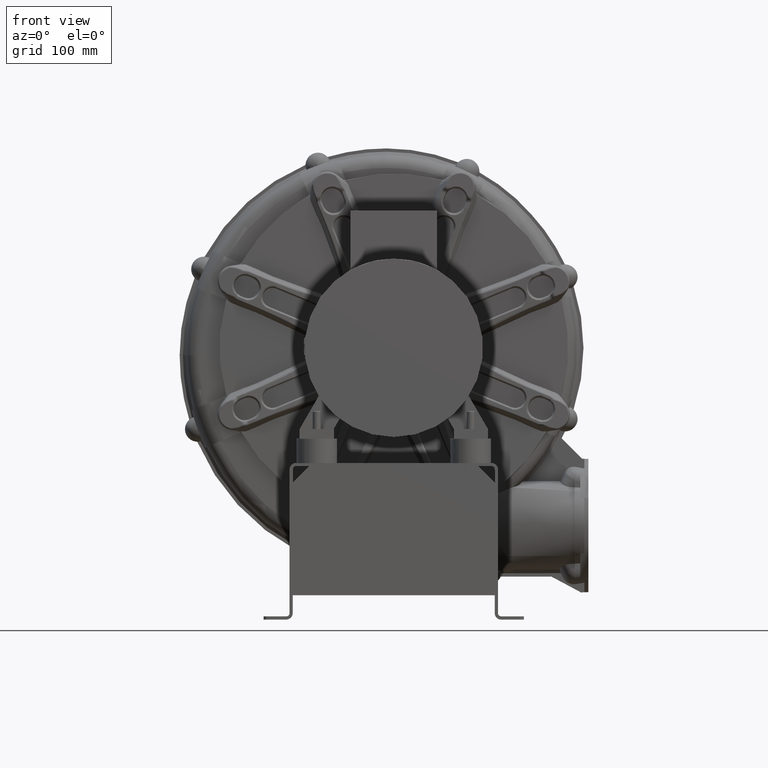
[diagram: clean part render]
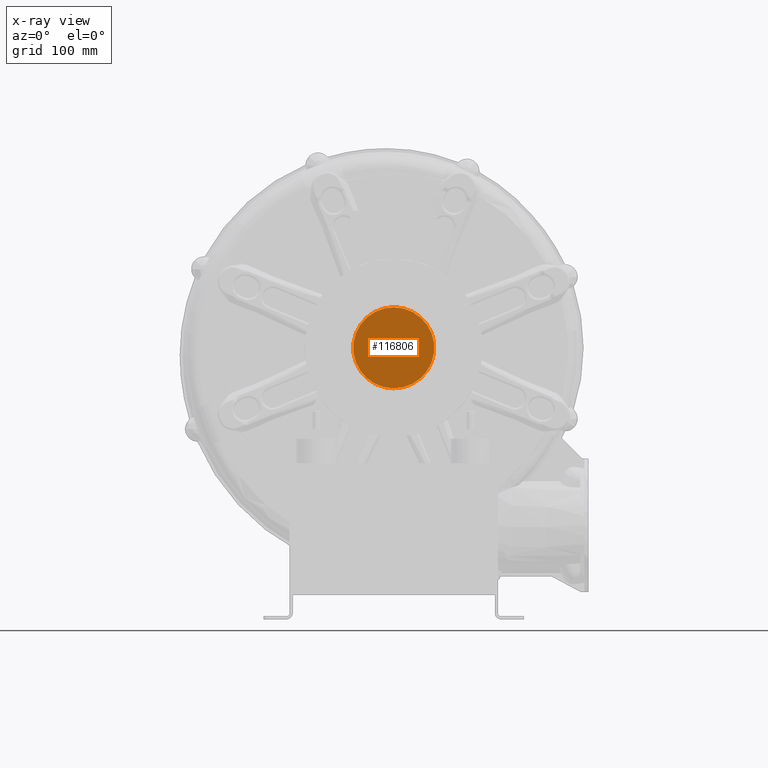
[diagram: x-ray — body ghosted, one internal face saturated and labeled with its STEP entity id]
A machine part, front view, then the same camera in x-ray: the body is ghosted and one INTERNAL B-rep face — a face not visible from any outside direction — is saturated and labeled: STEP entity #116806.
In plain terms, the highlighted planar face has unit normal (0, 1, 0).
Its self-contained STEP definition (entity closure, byte-faithful):
#116786=CARTESIAN_POINT('',(-2.695491E-014,133.99999999999974,195.9999999999998));
#116787=VERTEX_POINT('',#116786);
#116788=CARTESIAN_POINT('',(-2.801227E-014,133.99999999999974,145.99999999999983));
#116789=DIRECTION('',(0.0,-1.0,0.0));
#116790=DIRECTION('',(0.0,0.0,1.0));
#116791=AXIS2_PLACEMENT_3D('',#116788,#116789,#116790);
#116792=CIRCLE('',#116791,50.0);
#116793=EDGE_CURVE('',#116787,#116787,#116792,.T.);
#116798=CARTESIAN_POINT('',(-2.748359E-014,133.99999999999974,170.9999999999998));
#116799=DIRECTION('',(0.0,1.0,0.0));
#116800=DIRECTION('',(-1.0,0.0,0.0));
#116801=AXIS2_PLACEMENT_3D('',#116798,#116799,#116800);
#116802=PLANE('',#116801);
#116803=ORIENTED_EDGE('',*,*,#116793,.F.);
#116804=EDGE_LOOP('',(#116803));
#116805=FACE_OUTER_BOUND('',#116804,.T.);
#116806=ADVANCED_FACE('',(#116805),#116802,.T.);